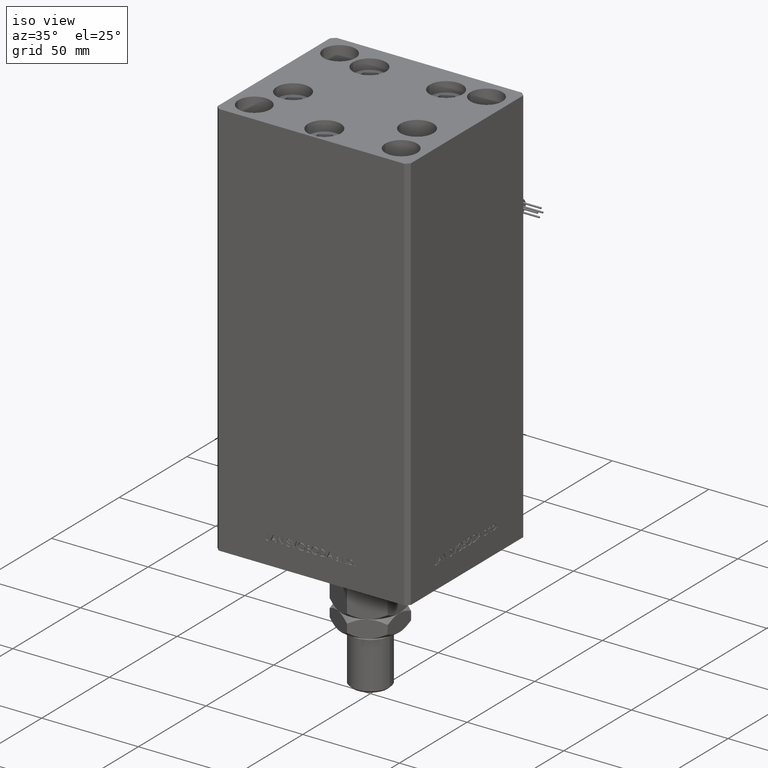
[diagram: clean part render]
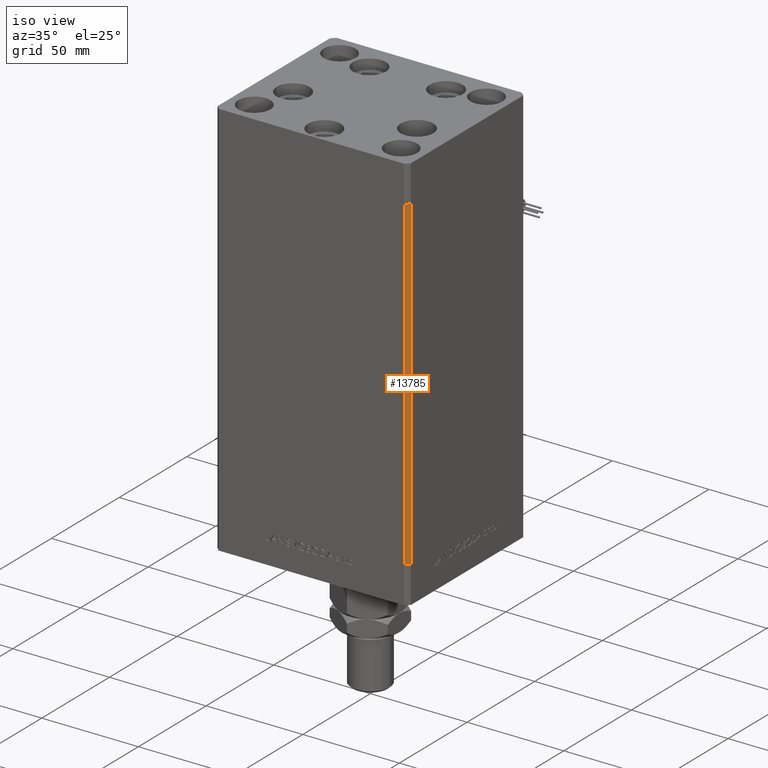
[diagram: same view with one face highlighted and labeled with its STEP entity id]
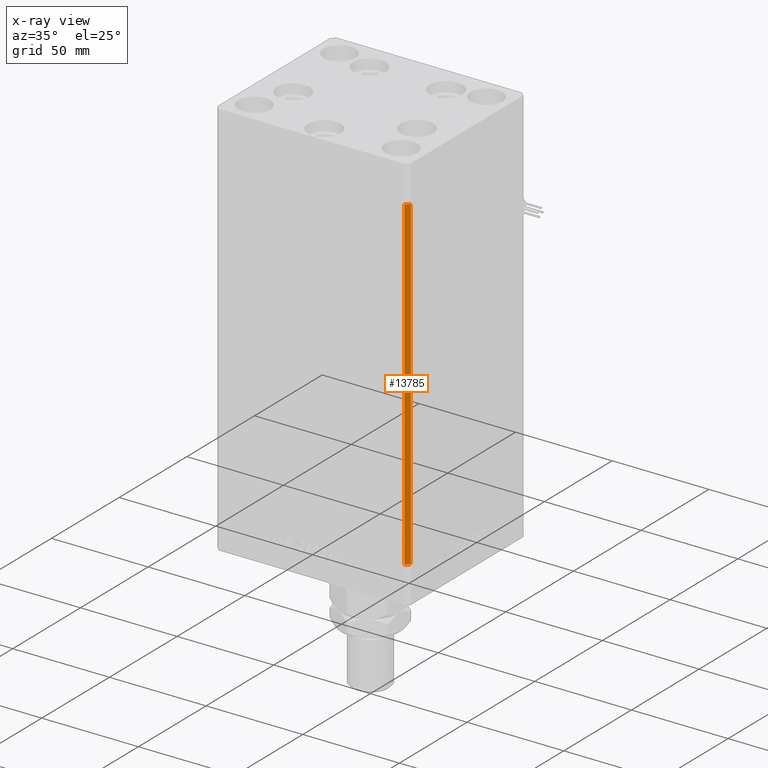
[diagram: x-ray of the same camera — body ghosted, the highlighted face saturated]
A machine part, iso view. The second image highlights one B-rep face of the part: STEP entity #13785.
The next image is the same camera in x-ray: the body ghosted, the highlighted face saturated — about 0% of this face is hidden behind the body in this view.
In plain terms, the highlighted planar face has unit normal (0.7071, -0.7071, 0).
Its self-contained STEP definition (entity closure, byte-faithful):
#2785 = EDGE_CURVE ( 'NONE', #33135, #37867, #4714, .T. ) ;
#4361 = ORIENTED_EDGE ( 'NONE', *, *, #7144, .T. ) ;
#4714 = LINE ( 'NONE', #8268, #38096 ) ;
#4988 = DIRECTION ( 'NONE',  ( -0.7071067811865474617, -0.7071067811865474617, 0.000000000000000000 ) ) ;
#5412 = VECTOR ( 'NONE', #14598, 1000.000000000000000 ) ;
#6905 = CARTESIAN_POINT ( 'NONE',  ( 47.99999999999998579, -43.50000000000000000, 168.5000000000000000 ) ) ;
#6965 = CARTESIAN_POINT ( 'NONE',  ( 49.99999999999998579, -41.49999999999999289, 168.5000000000000000 ) ) ;
#6977 = CARTESIAN_POINT ( 'NONE',  ( 47.99999999999998579, -43.50000000000000000, 168.5000000000000000 ) ) ;
#7144 = EDGE_CURVE ( 'NONE', #29095, #14673, #31756, .T. ) ;
#8268 = CARTESIAN_POINT ( 'NONE',  ( 49.99999999999998579, -41.49999999999999289, 0.000000000000000000 ) ) ;
#10426 = DIRECTION ( 'NONE',  ( 0.7071067811865474617, 0.7071067811865474617, 0.000000000000000000 ) ) ;
#13785 = ADVANCED_FACE ( 'NONE', ( #39032 ), #26511, .T. ) ;
#14598 = DIRECTION ( 'NONE',  ( -0.000000000000000000, -0.000000000000000000, -1.000000000000000000 ) ) ;
#14673 = VERTEX_POINT ( 'NONE', #6905 ) ;
#23357 = CARTESIAN_POINT ( 'NONE',  ( 47.99999999999998579, -43.50000000000000000, 0.000000000000000000 ) ) ;
#23531 = VECTOR ( 'NONE', #24725, 1000.000000000000000 ) ;
#23801 = ORIENTED_EDGE ( 'NONE', *, *, #31066, .F. ) ;
#24548 = VECTOR ( 'NONE', #52397, 1000.000000000000114 ) ;
#24725 = DIRECTION ( 'NONE',  ( -0.000000000000000000, -0.000000000000000000, -1.000000000000000000 ) ) ;
#26511 = PLANE ( 'NONE',  #30018 ) ;
#29095 = VERTEX_POINT ( 'NONE', #53472 ) ;
#30018 = AXIS2_PLACEMENT_3D ( 'NONE', #34698, #47967, #10426 ) ;
#31066 = EDGE_CURVE ( 'NONE', #29095, #33135, #50271, .T. ) ;
#31756 = LINE ( 'NONE', #6965, #24548 ) ;
#33135 = VERTEX_POINT ( 'NONE', #49410 ) ;
#34255 = EDGE_LOOP ( 'NONE', ( #49283, #23801, #4361, #39144 ) ) ;
#34698 = CARTESIAN_POINT ( 'NONE',  ( 49.99999999999998579, -41.49999999999999289, 168.5000000000000000 ) ) ;
#35864 = EDGE_CURVE ( 'NONE', #14673, #37867, #51870, .T. ) ;
#37867 = VERTEX_POINT ( 'NONE', #23357 ) ;
#38096 = VECTOR ( 'NONE', #4988, 1000.000000000000114 ) ;
#39032 = FACE_OUTER_BOUND ( 'NONE', #34255, .T. ) ;
#39144 = ORIENTED_EDGE ( 'NONE', *, *, #35864, .T. ) ;
#47967 = DIRECTION ( 'NONE',  ( 0.7071067811865475727, -0.7071067811865475727, 0.000000000000000000 ) ) ;
#49283 = ORIENTED_EDGE ( 'NONE', *, *, #2785, .F. ) ;
#49410 = CARTESIAN_POINT ( 'NONE',  ( 49.99999999999998579, -41.49999999999999289, 0.000000000000000000 ) ) ;
#50271 = LINE ( 'NONE', #53557, #23531 ) ;
#51870 = LINE ( 'NONE', #6977, #5412 ) ;
#52397 = DIRECTION ( 'NONE',  ( -0.7071067811865474617, -0.7071067811865474617, 0.000000000000000000 ) ) ;
#53472 = CARTESIAN_POINT ( 'NONE',  ( 49.99999999999998579, -41.49999999999999289, 168.5000000000000000 ) ) ;
#53557 = CARTESIAN_POINT ( 'NONE',  ( 49.99999999999998579, -41.49999999999999289, 168.5000000000000000 ) ) ;